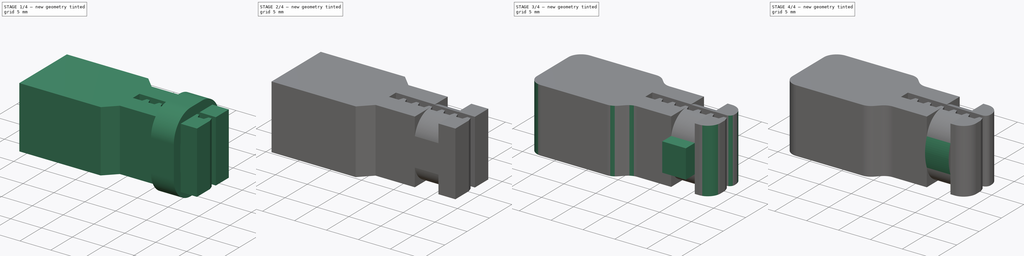
[diagram: build sequence overview — one tinted view per stage of 4, left to right]
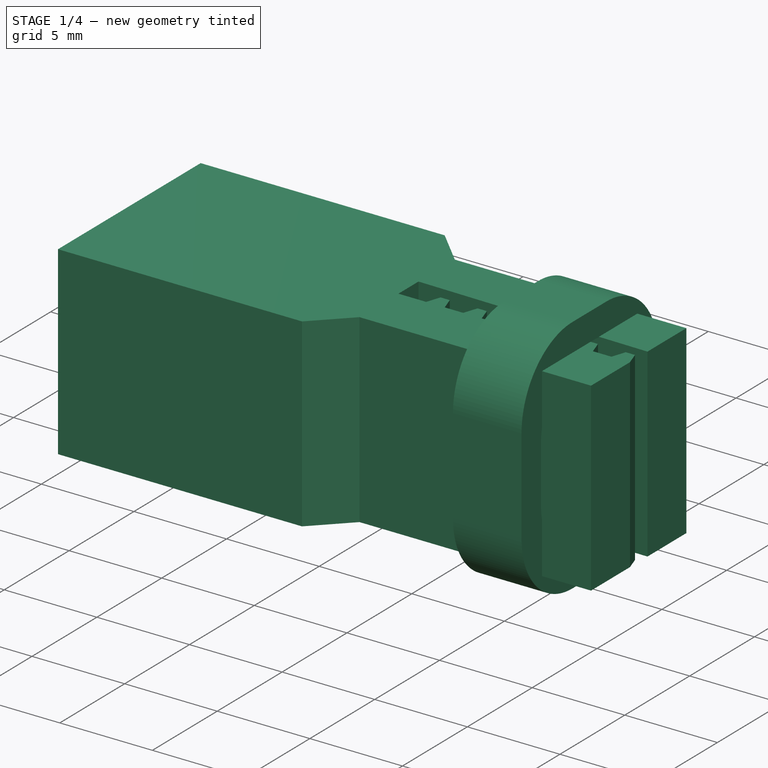
[diagram: stage 1 of 4 — iso view after this stage's code; geometry added in this stage tinted green]
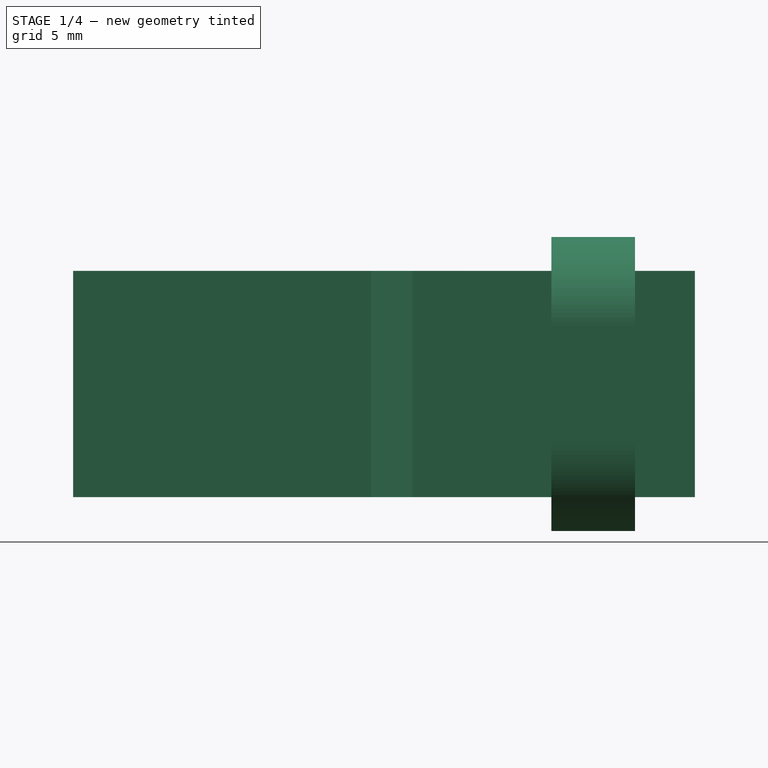
[diagram: stage 1 of 4 — front view after this stage's code; geometry added in this stage tinted green]
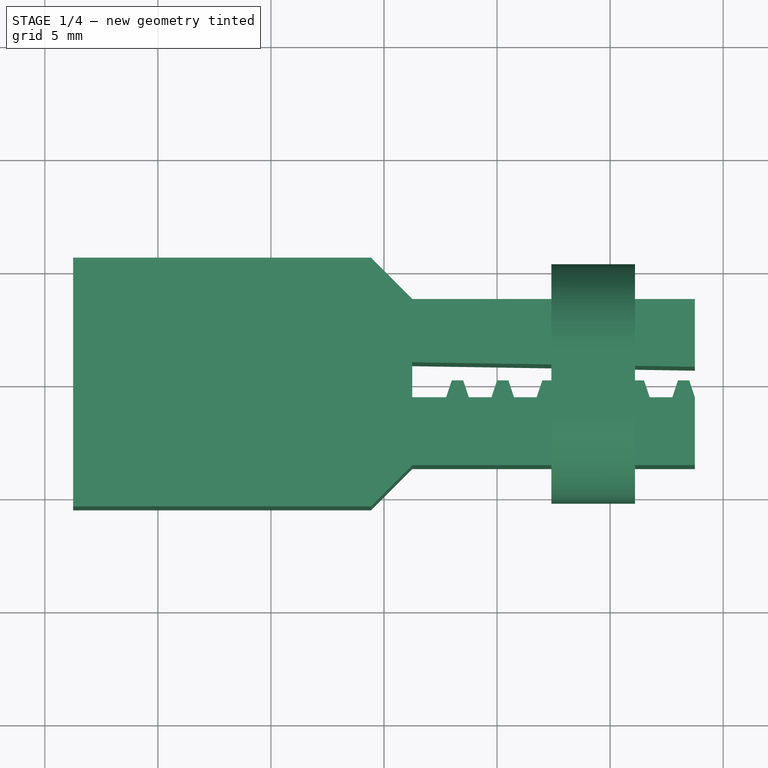
[diagram: stage 1 of 4 — top view after this stage's code; geometry added in this stage tinted green]
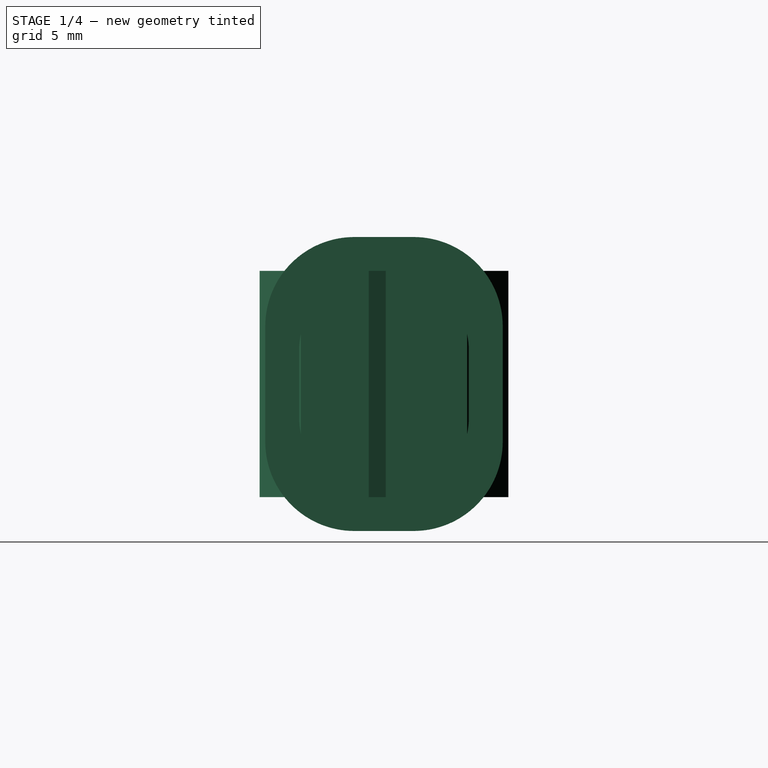
[diagram: stage 1 of 4 — right view after this stage's code; geometry added in this stage tinted green]
FCSTD DOCUMENT  (FreeCAD 0.15R4671 (Git))
Label: Belt Tensioner v2
License: All rights reserved
LicenseURL: http://de.wikipedia.org/wiki/Alle_Rechte_vorbehalten
objects: Sketcher::SketchObject×8, PartDesign::Pad×5, PartDesign::Pocket×3, Part::Cut×2, PartDesign::Fillet×2, PartDesign::Chamfer×1
note: 29 computed .brp shape members not serialized (recipe doc carries the construction recipe); baked Part::Feature solids carry a one-line shape summary decoded from their .brp

FEATURE [Sketcher::SketchObject] Sketch
  sketch-geometry (41):
    g0: LineSegment StartX=2.75 StartY=-0.675 StartZ=0 EndX=3 EndY=0.075 EndZ=0
    g1: LineSegment StartX=3 StartY=0.075 StartZ=0 EndX=3.5 EndY=0.075 EndZ=0
    g2: LineSegment StartX=3.5 StartY=0.075 StartZ=0 EndX=3.75 EndY=-0.675 EndZ=0
    g3: LineSegment StartX=3.75 StartY=-0.675 StartZ=0 EndX=4.75 EndY=-0.675 EndZ=0
    g4: LineSegment StartX=4.75 StartY=-0.675 StartZ=0 EndX=5 EndY=0.075 EndZ=0
    g5: LineSegment StartX=5 StartY=0.075 StartZ=0 EndX=5.5 EndY=0.075 EndZ=0
    g6: LineSegment StartX=5.5 StartY=0.075 StartZ=0 EndX=5.75 EndY=-0.675 EndZ=0
    g7: LineSegment StartX=5.75 StartY=-0.675 StartZ=0 EndX=6.75 EndY=-0.675 EndZ=0
    g8: LineSegment StartX=6.75 StartY=-0.675 StartZ=0 EndX=7 EndY=0.075 EndZ=0
    g9: LineSegment StartX=7 StartY=0.075 StartZ=0 EndX=7.5 EndY=0.075 EndZ=0
    g10: LineSegment StartX=7.5 StartY=0.075 StartZ=0 EndX=7.75 EndY=-0.675 EndZ=0
    g11: LineSegment StartX=7.75 StartY=-0.675 StartZ=0 EndX=8.75 EndY=-0.675 EndZ=0
    g12: LineSegment StartX=8.75 StartY=-0.675 StartZ=0 EndX=9 EndY=0.075 EndZ=0
    g13: LineSegment StartX=9 StartY=0.075 StartZ=0 EndX=9.5 EndY=0.075 EndZ=0
    g14: LineSegment StartX=9.5 StartY=0.075 StartZ=0 EndX=9.75 EndY=-0.675 EndZ=0
    g15: LineSegment [constr] StartX=13.75 StartY=-5.5 StartZ=0 EndX=2.75 EndY=-5.5 EndZ=0
    g16: LineSegment [constr] StartX=2.75 StartY=-5.5 StartZ=0 EndX=2.75 EndY=-0.675 EndZ=0
    g17: LineSegment StartX=9.75 StartY=-0.675 StartZ=0 EndX=10.75 EndY=-0.675 EndZ=0
    g18: LineSegment StartX=10.75 StartY=-0.675 StartZ=0 EndX=11 EndY=0.075 EndZ=0
    g19: LineSegment StartX=11 StartY=0.075 StartZ=0 EndX=11.5 EndY=0.075 EndZ=0
    g20: LineSegment StartX=11.5 StartY=0.075 StartZ=0 EndX=11.75 EndY=-0.675 EndZ=0
    g21: LineSegment StartX=11.75 StartY=-0.675 StartZ=0 EndX=12.75 EndY=-0.675 EndZ=0
    g22: LineSegment StartX=12.75 StartY=-0.675 StartZ=0 EndX=13 EndY=0.075 EndZ=0
    g23: LineSegment StartX=13 StartY=0.075 StartZ=0 EndX=13.5 EndY=0.075 EndZ=0
    g24: LineSegment StartX=13.5 StartY=0.075 StartZ=0 EndX=13.75 EndY=-0.675 EndZ=0
    g25: LineSegment [constr] StartX=13.75 StartY=-0.675 StartZ=0 EndX=13.75 EndY=-5.5 EndZ=0
    g26: LineSegment [constr] StartX=2.75 StartY=-5.5 StartZ=0 EndX=-13.75 EndY=-5.5 EndZ=0
    g27: LineSegment StartX=-13.75 StartY=-5.5 StartZ=0 EndX=-13.75 EndY=5.5 EndZ=0
    g28: LineSegment [constr] StartX=-13.75 StartY=5.5 StartZ=0 EndX=13.75 EndY=5.5 EndZ=0
    g29: LineSegment [constr] StartX=13.75 StartY=5.5 StartZ=0 EndX=13.75 EndY=0.675 EndZ=0
    g30: LineSegment StartX=13.75 StartY=0.675 StartZ=0 EndX=1.25 EndY=0.875 EndZ=0
    g31: LineSegment StartX=1.25 StartY=0.875 StartZ=0 EndX=1.25 EndY=-0.675 EndZ=0
    g32: LineSegment StartX=1.25 StartY=-0.675 StartZ=0 EndX=2.75 EndY=-0.675 EndZ=0
    g33: LineSegment StartX=-13.75 StartY=5.5 StartZ=0 EndX=-0.575 EndY=5.5 EndZ=0
    g34: LineSegment StartX=-0.575 StartY=5.5 StartZ=0 EndX=1.25 EndY=3.675 EndZ=0
    g35: LineSegment StartX=1.25 StartY=3.675 StartZ=0 EndX=13.75 EndY=3.675 EndZ=0
    g36: LineSegment StartX=13.75 StartY=3.675 StartZ=0 EndX=13.75 EndY=0.675 EndZ=0
    g37: LineSegment StartX=-13.75 StartY=-5.5 StartZ=0 EndX=-0.575 EndY=-5.5 EndZ=0
    g38: LineSegment StartX=-0.575 StartY=-5.5 StartZ=0 EndX=1.25 EndY=-3.675 EndZ=0
    g39: LineSegment StartX=1.25 StartY=-3.675 StartZ=0 EndX=13.75 EndY=-3.675 EndZ=0
    g40: LineSegment StartX=13.75 StartY=-3.675 StartZ=0 EndX=13.75 EndY=-0.675 EndZ=0
  constraints (121):
    c: Coincident(g0,g1)
    c: Horizontal(g1)
    c: Coincident(g1,g2)
    c: Coincident(g2,g3)
    c: Horizontal(g3)
    c: Coincident(g3,g4)
    c: Coincident(g4,g5)
    c: Horizontal(g5)
    c: Coincident(g5,g6)
    c: Coincident(g6,g7)
    c: Horizontal(g7)
    c: Coincident(g7,g8)
    c: Coincident(g8,g9)
    c: Horizontal(g9)
    c: Coincident(g9,g10)
    c: Coincident(g10,g11)
    c: Horizontal(g11)
    c: Coincident(g11,g12)
    c: Coincident(g12,g13)
    c: Horizontal(g13)
    c: Coincident(g13,g14)
    c: Horizontal(g15)
    c: Coincident(g15,g16)
    c: Coincident(g16,g0)
    c: Vertical(g16)
    c: Equal(g0,g4)
    c: Equal(g4,g8)
    c: Equal(g8,g12)
    c: Parallel(g12,g8)
    c: Parallel(g8,g4)
    c: Parallel(g4,g0)
    c: Equal(g2,g6)
    c: Equal(g6,g10)
    c: Equal(g10,g14)
    c: Parallel(g2,g6)
    c: Parallel(g6,g10)
    c: Parallel(g10,g14)
    c: Equal(g13,g9)
    c: Equal(g9,g5)
    c: Equal(g5,g1)
    c: Equal(g3,g7)
    c: Equal(g7,g11)
    c: DistanceX(g1) = 0.5
    c: DistanceX(g3) = 1
    c: Equal(g2,g0)
    c: DistanceY(g0,g0) = 0.75
    c: DistanceX(g5,g9) = 2
    c: Coincident(g14,g17)
    c: Horizontal(g17)
    c: Coincident(g17,g18)
    c: Coincident(g18,g19)
    c: Horizontal(g19)
    c: Coincident(g19,g20)
    c: Coincident(g20,g21)
    c: Horizontal(g21)
    c: Coincident(g21,g22)
    c: Coincident(g22,g23)
    c: Horizontal(g23)
    c: Coincident(g23,g24)
    c: Coincident(g24,g25)
    c: Coincident(g25,g15)
    c: Vertical(g25)
    c: Equal(g14,g18)
    c: Equal(g18,g20)
    c: Equal(g20,g22)
    c: Equal(g22,g24)
    c: Equal(g11,g17)
    c: Equal(g17,g21)
    c: Equal(g13,g19)
    c: Equal(g19,g23)
    c: Equal(g16,g25)
    c: Parallel(g12,g18)
    c: Parallel(g18,g22)
    c: Equal(g14,g20)
    c: Parallel(g14,g20)
    c: Parallel(g20,g24)
    c: Coincident(g15,g26)
    c: Horizontal(g26)
    c: Coincident(g26,g27)
    c: Vertical(g27)
    c: Coincident(g27,g28)
    c: Horizontal(g28)
    c: Coincident(g28,g29)
    c: Vertical(g29)
    c: Coincident(g29,g30)
    c: Coincident(g30,g31)
    c: Vertical(g31)
    c: Coincident(g31,g32)
    c: Coincident(g32,g0)
    c: Horizontal(g32)
    c: Equal(g25,g29)
    c: PointOnObject(g29,g25)
    c: DistanceY(g29,g24) = -1.35
    c: DistanceY(g31) = -1.55
    c: DistanceX(g32) = 1.5
    c: DistanceX(g31,g26) = -15
    c: DistanceY(g27) = 11
    c: Symmetric(g26,g27,g-1)
    c: Symmetric(g27,g28,g-2)
    c: Coincident(g27,g33)
    c: Coincident(g33,g34)
    c: Coincident(g34,g35)
    c: PointOnObject(g35,g29)
    c: Horizontal(g35)
    c: Coincident(g35,g36)
    c: Coincident(g29,g36)
    c: PointOnObject(g33,g28)
    c: PointOnObject(g34,g31)
    c: Angle(g35,g34) = 2.35619
    c: Coincident(g26,g37)
    c: Coincident(g37,g38)
    c: Coincident(g38,g39)
    c: PointOnObject(g39,g25)
    c: Horizontal(g39)
    c: Coincident(g39,g40)
    c: Coincident(g24,g40)
    c: PointOnObject(g37,g26)
    c: PointOnObject(g38,g31)
    c: Equal(g38,g34)
    c: Angle(g38,g39) = 2.35619
    c: DistanceY(g31,g38) = -3
FEATURE [PartDesign::Pad] Pad
  Length = 10
  Length2 = 100
  Sketch = -> Sketch
  Type = 0
FEATURE [Sketcher::SketchObject] Sketch002
  Placement = pos=(-7,0,0) rot=(0.57735,0.57735,0.57735;2.0944rad)
  sketch-geometry (10):
    g0: LineSegment [constr] StartX=0 StartY=0.929681 StartZ=0 EndX=3.525 EndY=2.96484 EndZ=0
    g1: LineSegment StartX=3.525 StartY=2.96484 StartZ=0 EndX=3.525 EndY=7.03516 EndZ=0
    g2: LineSegment StartX=3.525 StartY=7.03516 StartZ=0 EndX=0 EndY=9.07032 EndZ=0
    g3: LineSegment StartX=0 StartY=9.07032 StartZ=0 EndX=-3.525 EndY=7.03516 EndZ=0
    g4: LineSegment StartX=-3.525 StartY=7.03516 StartZ=0 EndX=-3.525 EndY=2.96484 EndZ=0
    g5: LineSegment [constr] StartX=-3.525 StartY=2.96484 StartZ=0 EndX=0 EndY=0.929681 EndZ=0
    g6: Circle [constr] CenterX=0 CenterY=5 CenterZ=0 NormalX=0 NormalY=0 NormalZ=1 Radius=4.07032
    g7: LineSegment StartX=-3.525 StartY=2.96484 StartZ=0 EndX=-3.525 EndY=0 EndZ=0
    g8: LineSegment StartX=-3.525 StartY=0 StartZ=0 EndX=3.525 EndY=0 EndZ=0
    g9: LineSegment StartX=3.525 StartY=0 StartZ=0 EndX=3.525 EndY=2.96484 EndZ=0
  constraints (26):
    c: Coincident(g0,g1)
    c: Coincident(g1,g2)
    c: Coincident(g2,g3)
    c: Coincident(g3,g4)
    c: Coincident(g4,g5)
    c: Coincident(g5,g0)
    c: Equal(g0, g1-g5) x5
    c: PointOnObject(g0,g6)
    c: PointOnObject(g1,g6)
    c: PointOnObject(g2,g6)
    c: PointOnObject(g3,g6)
    c: PointOnObject(g4,g6)
    c: PointOnObject(g5,g6)
    c: PointOnObject(g3,g-2)
    c: Vertical(g4)
    c: PointOnObject(g6,g-2)
    c: DistanceY(g-1,g6) = 5
    c: Distance(g0,g4) = 7.05
    c: Coincident(g4,g7)
    c: PointOnObject(g7,g-1)
    c: Vertical(g7)
    c: Coincident(g7,g8)
    c: Coincident(g8,g9)
    c: Coincident(g9,g0)
    c: Vertical(g9)
    c: PointOnObject(g8,g-1)
FEATURE [PartDesign::Pad] Pad001
  Length = 3.5
  Length2 = 100
  Placement = pos=(-7,0,0) rot=(0.57735,0.57735,0.57735;2.0944rad)
  Reversed = true
  Sketch = -> Sketch002
  Type = 0
FEATURE [Sketcher::SketchObject] Sketch003
  Placement = pos=(11.1,0,0) rot=(0.57735,0.57735,0.57735;2.0944rad)
  sketch-geometry (20):
    g0: LineSegment StartX=-1.31066 StartY=11.5 StartZ=0 EndX=1.31066 EndY=11.5 EndZ=0
    g1: LineSegment StartX=5.25 StartY=7.56066 StartZ=0 EndX=5.25 EndY=2.43934 EndZ=0
    g2: LineSegment StartX=1.31066 StartY=-1.5 StartZ=0 EndX=-1.31066 EndY=-1.5 EndZ=0
    g3: LineSegment StartX=-5.25 StartY=2.43934 StartZ=0 EndX=-5.25 EndY=7.56066 EndZ=0
    g4: LineSegment StartX=-0.25 StartY=10 StartZ=0 EndX=0.25 EndY=10 EndZ=0
    g5: LineSegment StartX=3.75 StartY=6.5 StartZ=0 EndX=3.75 EndY=3.5 EndZ=0
    g6: LineSegment StartX=0.25 StartY=0 StartZ=0 EndX=-0.25 EndY=0 EndZ=0
    g7: LineSegment StartX=-3.75 StartY=3.5 StartZ=0 EndX=-3.75 EndY=6.5 EndZ=0
    g8: ArcOfCircle CenterX=-1.31066 CenterY=7.56066 CenterZ=0 NormalX=0 NormalY=0 NormalZ=1 Radius=3.93934 StartAngle=1.5708 EndAngle=3.14159
    g9: ArcOfCircle CenterX=1.31066 CenterY=7.56066 CenterZ=0 NormalX=0 NormalY=0 NormalZ=1 Radius=3.93934 StartAngle=0 EndAngle=1.5708
    g10: ArcOfCircle CenterX=1.31066 CenterY=2.43934 CenterZ=0 NormalX=0 NormalY=0 NormalZ=1 Radius=3.93934 StartAngle=4.71239 EndAngle=6.28319
    g11: ArcOfCircle CenterX=-1.31066 CenterY=2.43934 CenterZ=0 NormalX=0 NormalY=0 NormalZ=1 Radius=3.93934 StartAngle=3.14159 EndAngle=4.71239
    g12: ArcOfCircle CenterX=-0.25 CenterY=3.5 CenterZ=0 NormalX=0 NormalY=0 NormalZ=1 Radius=3.5 StartAngle=3.14159 EndAngle=4.71239
    g13: ArcOfCircle CenterX=0.25 CenterY=3.5 CenterZ=0 NormalX=0 NormalY=0 NormalZ=1 Radius=3.5 StartAngle=4.71239 EndAngle=6.28319
    g14: ArcOfCircle CenterX=0.25 CenterY=6.5 CenterZ=0 NormalX=0 NormalY=0 NormalZ=1 Radius=3.5 StartAngle=0 EndAngle=1.5708
    g15: ArcOfCircle CenterX=-0.25 CenterY=6.5 CenterZ=0 NormalX=0 NormalY=0 NormalZ=1 Radius=3.5 StartAngle=1.5708 EndAngle=3.14159
    g16: LineSegment [constr] StartX=-1.31066 StartY=7.56066 StartZ=0 EndX=-0.25 EndY=6.5 EndZ=0
    g17: LineSegment [constr] StartX=0.25 StartY=3.5 StartZ=0 EndX=1.31066 EndY=2.43934 EndZ=0
    g18: LineSegment [constr] StartX=1.31066 StartY=7.56066 StartZ=0 EndX=0.25 EndY=6.5 EndZ=0
    g19: LineSegment [constr] StartX=-0.25 StartY=3.5 StartZ=0 EndX=-1.31066 EndY=2.43934 EndZ=0
  constraints (46):
    c: Horizontal(g2)
    c: Vertical(g1)
    c: Vertical(g3)
    c: Horizontal(g4)
    c: Vertical(g5)
    c: Vertical(g7)
    c: Tangent(g3,g8) = 1.5708
    c: Tangent(g0,g8) = 1.5708
    c: Tangent(g0,g9) = 1.5708
    c: Tangent(g1,g9) = 1.5708
    c: Tangent(g1,g10) = 1.5708
    c: Tangent(g2,g10) = 1.5708
    c: Tangent(g3,g11) = 1.5708
    c: Tangent(g2,g11) = 1.5708
    c: Tangent(g7,g12) = 1.5708
    c: Tangent(g6,g12) = 1.5708
    c: Tangent(g6,g13) = 1.5708
    c: Tangent(g5,g13) = 1.5708
    c: Tangent(g5,g14) = 1.5708
    c: Tangent(g4,g14) = 1.5708
    c: Tangent(g4,g15) = 1.5708
    c: Tangent(g7,g15) = 1.5708
    c: Equal(g8,g11)
    c: Equal(g11,g10)
    c: Equal(g10,g9)
    c: Symmetric(g0,g0,g-2)
    c: Symmetric(g6,g6,g-2)
    c: PointOnObject(g6,g-1)
    c: Coincident(g16,g8)
    c: Coincident(g16,g15)
    c: Coincident(g17,g13)
    c: Coincident(g17,g10)
    c: Coincident(g18,g9)
    c: Coincident(g18,g14)
    c: Coincident(g19,g12)
    c: Coincident(g19,g11)
    c: Equal(g19,g16)
    c: Equal(g16,g18)
    c: Equal(g18,g17)
    c: Parallel(g17,g16)
    c: Perpendicular(g17,g19)
    c: Distance(g19) = 1.5
    c: DistanceX(g7,g5) = 7.5
    c: DistanceY(g4,g6) = -10
    c: Radius(g15) = 3.5
    c: DistanceY(g6,g2) = -1.5
FEATURE [PartDesign::Pad] Pad002
  Length = 3.7
  Length2 = 100
  Placement = pos=(11.1,0,0) rot=(0.57735,0.57735,0.57735;2.0944rad)
  Reversed = true
  Sketch = -> Sketch003
  Type = 0
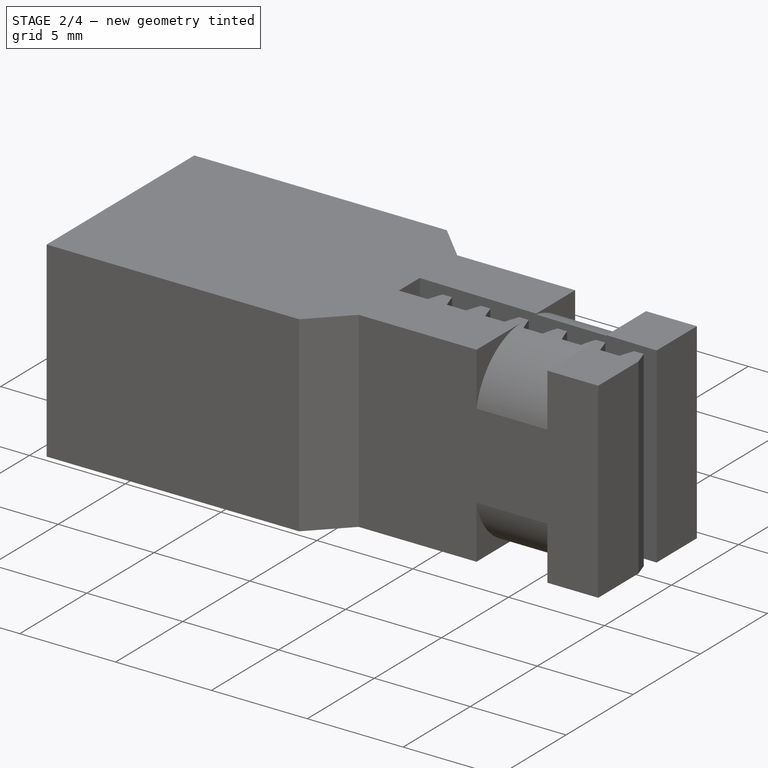
[diagram: stage 2 of 4 — iso view after this stage's code; geometry added in this stage tinted green]
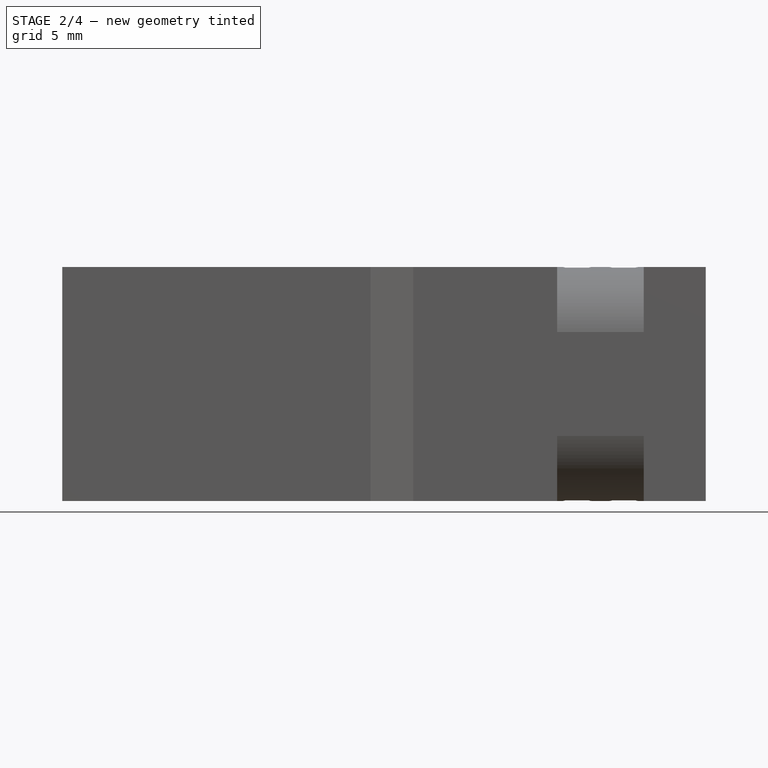
[diagram: stage 2 of 4 — front view after this stage's code; geometry added in this stage tinted green]
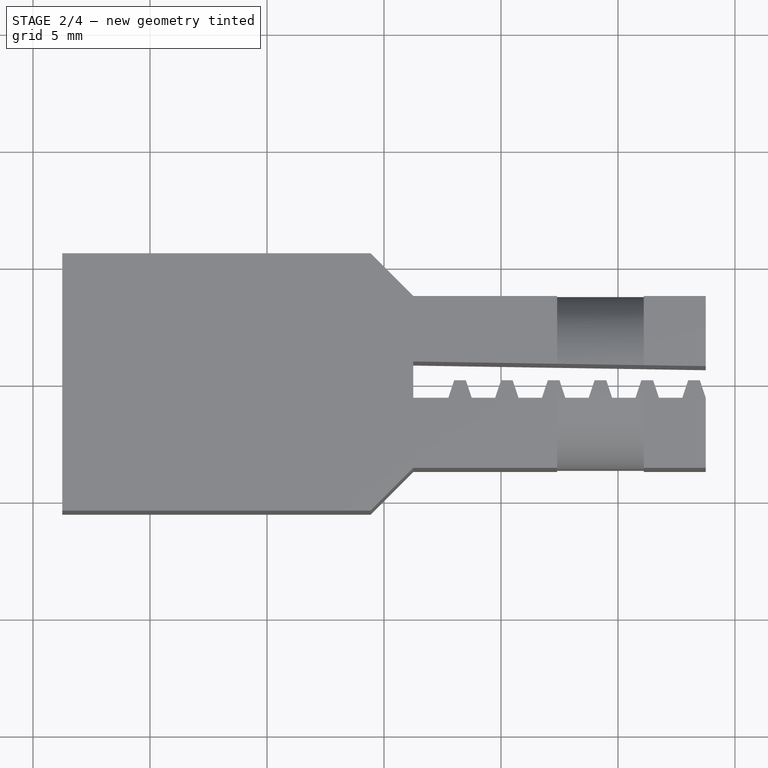
[diagram: stage 2 of 4 — top view after this stage's code; geometry added in this stage tinted green]
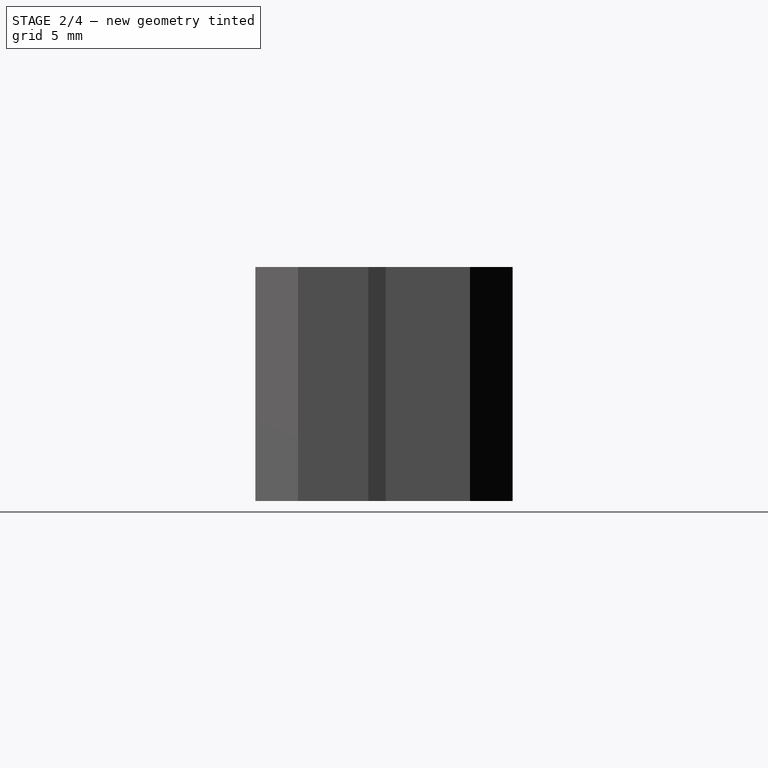
[diagram: stage 2 of 4 — right view after this stage's code; geometry added in this stage tinted green]
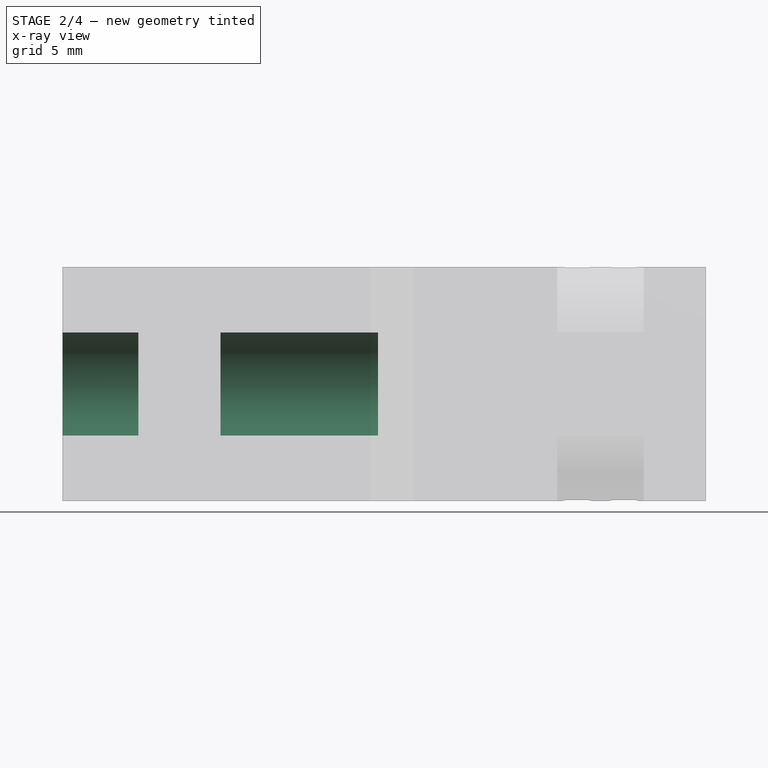
[diagram: stage 2 of 4 — x-ray composite at the front view; earlier geometry ghosted, this stage's added geometry solid]
FEATURE [Sketcher::SketchObject] Sketch001
  ExternalGeometry = -> [Pad]
  Placement = pos=(-13.75,0,0) rot=(0.57735,-0.57735,-0.57735;2.0944rad)
  Support = -> Pad [Face1]
  sketch-geometry (2):
    g0: Circle CenterX=0 CenterY=5 CenterZ=0 NormalX=0 NormalY=0 NormalZ=1 Radius=2.2
    g1: LineSegment [constr] StartX=5.5 StartY=5 StartZ=0 EndX=-5.5 EndY=5 EndZ=0
  constraints (7):
    c: PointOnObject(g0,g-2)
    c: Horizontal(g1)
    c: PointOnObject(g0,g1)
    c: Radius(g0) = 2.2
    c: PointOnObject(g1,g-4)
    c: PointOnObject(g1,g-3)
    c: Symmetric(g-4,g-4,g1)
FEATURE [PartDesign::Pocket] Pocket
  Length = 13.5
  Sketch = -> Sketch001
  Type = 0
FEATURE [Part::Cut] Cut
  Base = -> Pocket
  Tool = -> Pad001
FEATURE [Part::Cut] Cut001
  Base = -> Cut
  Tool = -> Pad002
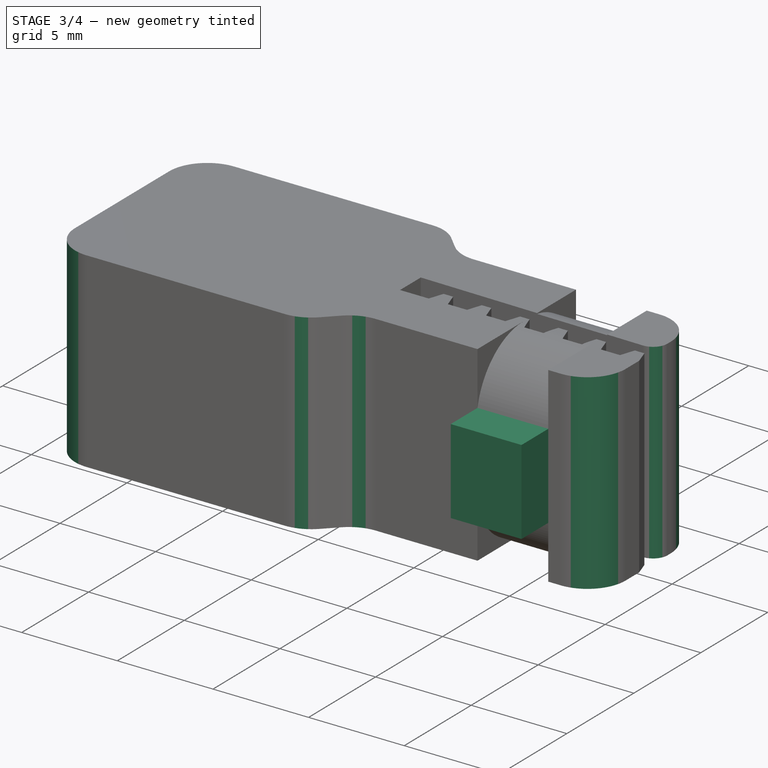
[diagram: stage 3 of 4 — iso view after this stage's code; geometry added in this stage tinted green]
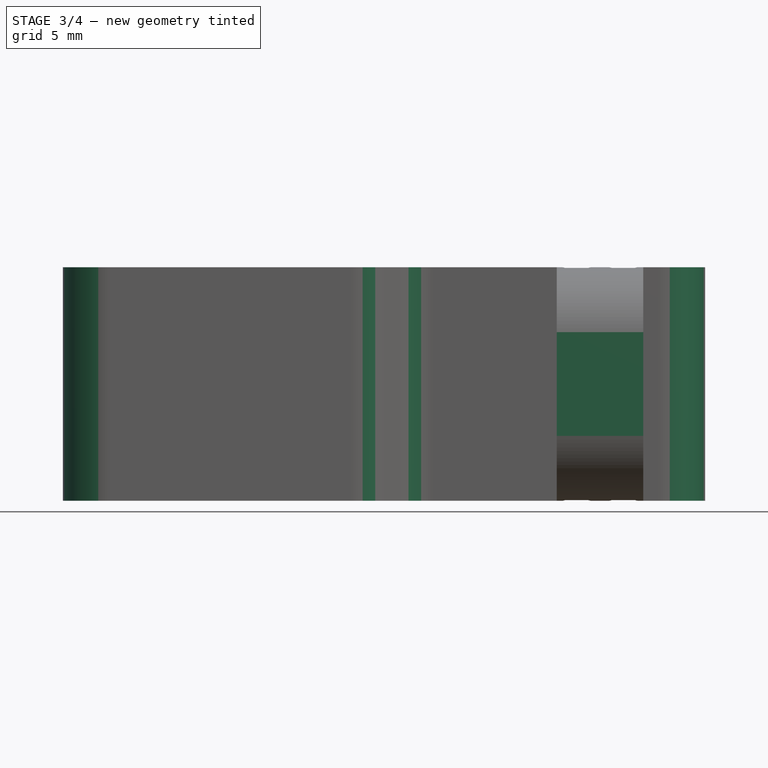
[diagram: stage 3 of 4 — front view after this stage's code; geometry added in this stage tinted green]
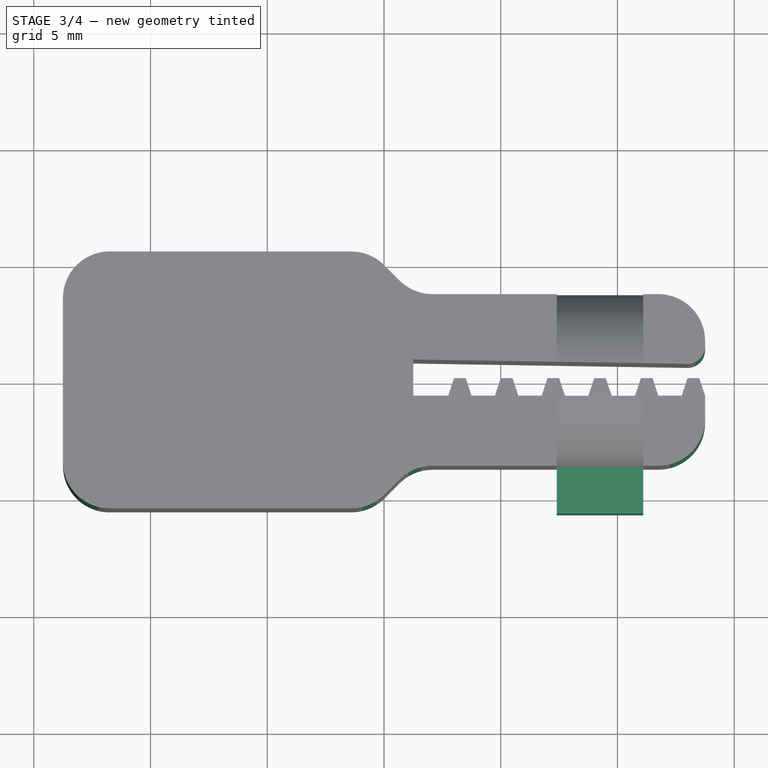
[diagram: stage 3 of 4 — top view after this stage's code; geometry added in this stage tinted green]
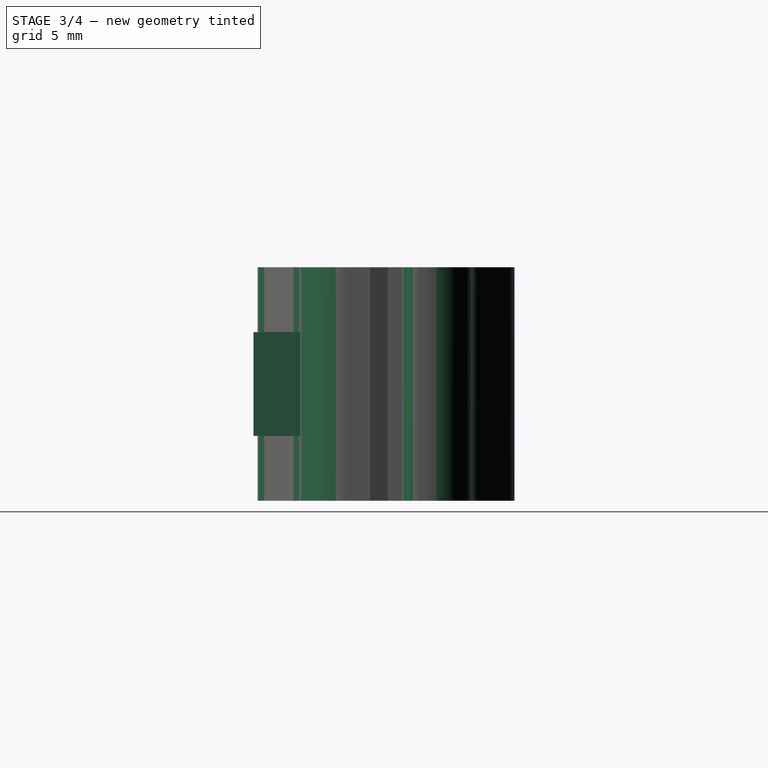
[diagram: stage 3 of 4 — right view after this stage's code; geometry added in this stage tinted green]
FEATURE [PartDesign::Chamfer] Chamfer
  Base = -> Cut001 [Edge31,Edge33,Edge32,Edge30]
  Size = 0.5
FEATURE [PartDesign::Fillet] Fillet
  Base = -> Chamfer [Edge48,Edge42,Edge40,Edge38,Edge99,Edge105,Edge106,Edge36]
  Radius = 2
FEATURE [PartDesign::Fillet] Fillet001
  Base = -> Fillet [Edge93]
  Radius = 0.75
FEATURE [Sketcher::SketchObject] Sketch004
  ExternalGeometry = -> [Fillet001]
  Placement = pos=(0,-3.675,0) rot=(1,0,0;1.5708rad)
  Support = -> Fillet001 [Face28]
  sketch-geometry (4):
    g0: LineSegment StartX=7.4 StartY=7.22068 StartZ=0 EndX=11.1 EndY=7.22068 EndZ=0
    g1: LineSegment StartX=11.1 StartY=7.22068 StartZ=0 EndX=11.1 EndY=2.77932 EndZ=0
    g2: LineSegment StartX=11.1 StartY=2.77932 StartZ=0 EndX=7.4 EndY=2.77932 EndZ=0
    g3: LineSegment StartX=7.4 StartY=2.77932 StartZ=0 EndX=7.4 EndY=7.22068 EndZ=0
  constraints (10):
    c: Coincident(g0,g1)
    c: Coincident(g1,g2)
    c: Coincident(g2,g3)
    c: Coincident(g3,g0)
    c: Horizontal(g0)
    c: Horizontal(g2)
    c: Vertical(g1)
    c: Vertical(g3)
    c: Coincident(g0,g-3)
    c: Coincident(g1,g-4)
FEATURE [PartDesign::Pad] Pad003
  Length = 2
  Length2 = 100
  Sketch = -> Sketch004
  Type = 0
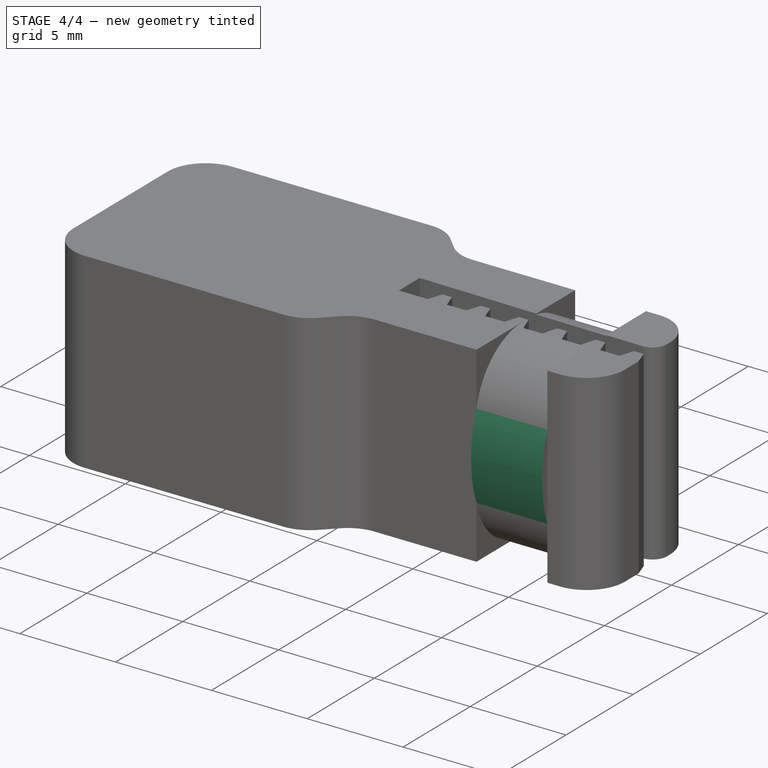
[diagram: stage 4 of 4 — iso view after this stage's code; geometry added in this stage tinted green]
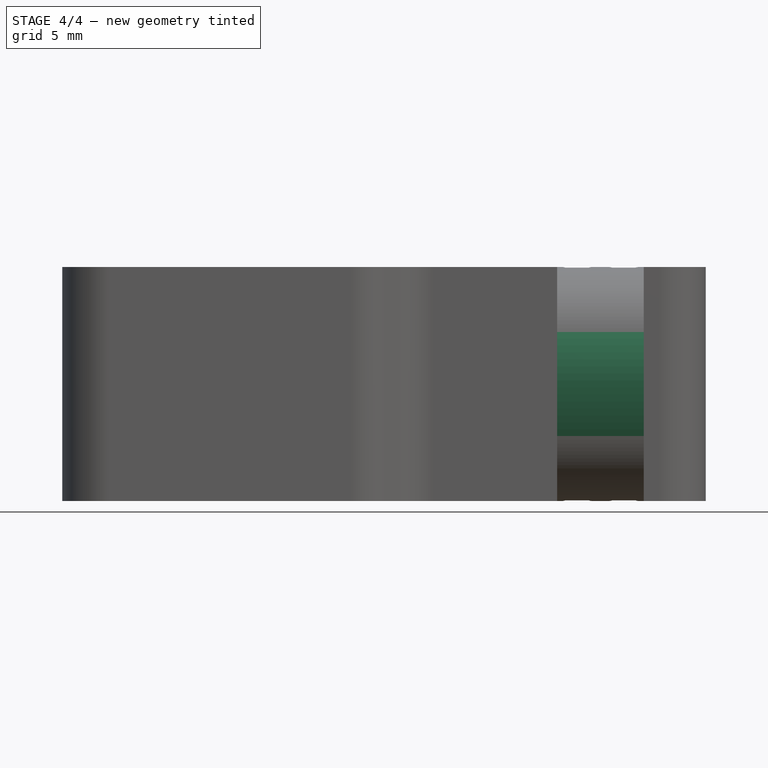
[diagram: stage 4 of 4 — front view after this stage's code; geometry added in this stage tinted green]
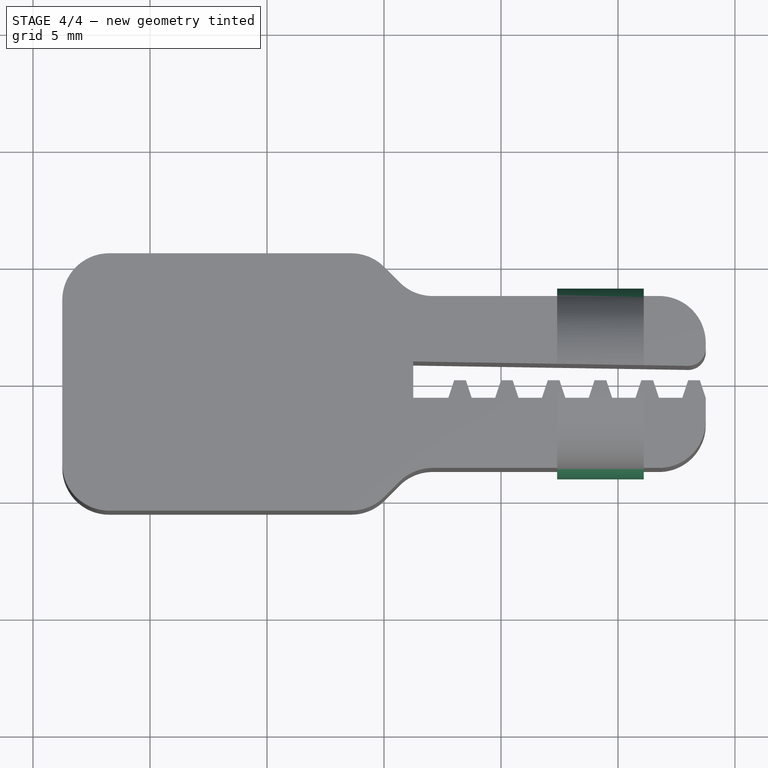
[diagram: stage 4 of 4 — top view after this stage's code; geometry added in this stage tinted green]
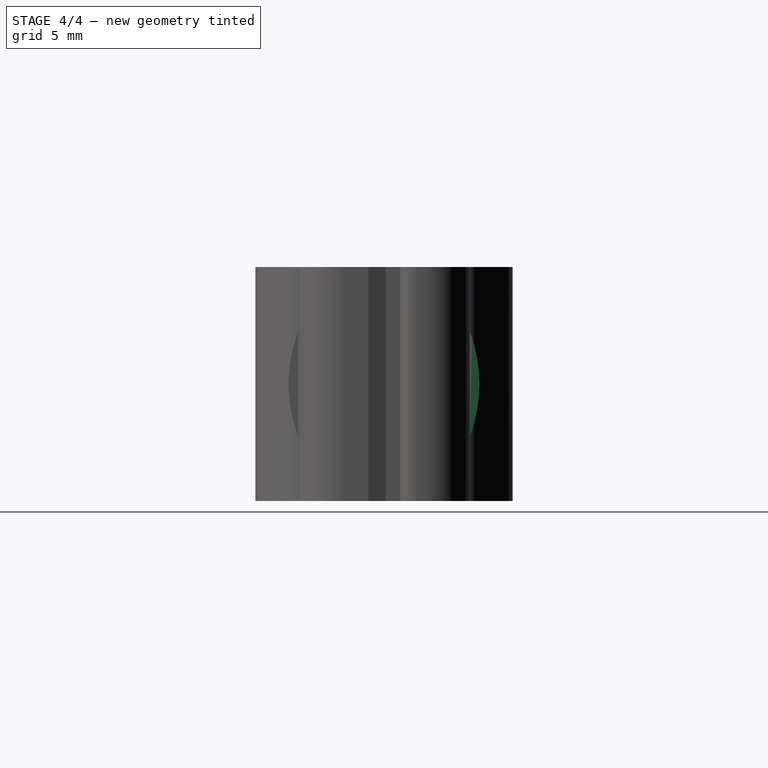
[diagram: stage 4 of 4 — right view after this stage's code; geometry added in this stage tinted green]
FEATURE [Sketcher::SketchObject] Sketch005
  ExternalGeometry = -> [Pad003]
  Placement = pos=(11.1,0,0) rot=(0.57735,0.57735,0.57735;2.0944rad)
  Support = -> Pad003 [Face3]
  sketch-geometry (4):
    g0: ArcOfCircle CenterX=2.27404 CenterY=5 CenterZ=0 NormalX=0 NormalY=0 NormalZ=1 Radius=6.35 StartAngle=2.78433 EndAngle=3.49886
    g1: LineSegment StartX=-3.675 StartY=2.77932 StartZ=0 EndX=-5.675 EndY=2.77932 EndZ=0
    g2: LineSegment StartX=-5.675 StartY=2.77932 StartZ=0 EndX=-5.675 EndY=7.22068 EndZ=0
    g3: LineSegment StartX=-5.675 StartY=7.22068 StartZ=0 EndX=-3.675 EndY=7.22068 EndZ=0
  constraints (9):
    c: Coincident(g0,g-3)
    c: Coincident(g0,g-4)
    c: Coincident(g1,g-4)
    c: Coincident(g1,g2)
    c: Coincident(g2,g-3)
    c: Coincident(g2,g3)
    c: Coincident(g3,g0)
    c: Coincident(g0,g1)
    c: Radius(g0) = 6.35
FEATURE [PartDesign::Pocket] Pocket001
  Length = 5
  Sketch = -> Sketch005
  Type = 2
FEATURE [Sketcher::SketchObject] Sketch006
  ExternalGeometry = -> [Pocket001]
  Placement = pos=(0,3.675,0) rot=(0,0.707107,0.707107;3.14159rad)
  Support = -> Pocket001 [Face49]
  sketch-geometry (4):
    g0: LineSegment StartX=-11.1 StartY=7.22068 StartZ=0 EndX=-7.4 EndY=7.22068 EndZ=0
    g1: LineSegment StartX=-7.4 StartY=7.22068 StartZ=0 EndX=-7.4 EndY=2.77932 EndZ=0
    g2: LineSegment StartX=-7.4 StartY=2.77932 StartZ=0 EndX=-11.1 EndY=2.77932 EndZ=0
    g3: LineSegment StartX=-11.1 StartY=2.77932 StartZ=0 EndX=-11.1 EndY=7.22068 EndZ=0
  constraints (10):
    c: Coincident(g0,g1)
    c: Coincident(g1,g2)
    c: Coincident(g2,g3)
    c: Coincident(g3,g0)
    c: Horizontal(g0)
    c: Horizontal(g2)
    c: Vertical(g1)
    c: Vertical(g3)
    c: Coincident(g0,g-3)
    c: Coincident(g1,g-4)
FEATURE [PartDesign::Pad] Pad004
  Length = 2
  Length2 = 100
  Sketch = -> Sketch006
  Type = 0
FEATURE [Sketcher::SketchObject] Sketch007
  ExternalGeometry = -> [Pad004]
  Placement = pos=(11.1,0,0) rot=(0.57735,0.57735,0.57735;2.0944rad)
  Support = -> Pad004 [Face5]
  sketch-geometry (4):
    g0: ArcOfCircle CenterX=-2.27404 CenterY=5 CenterZ=0 NormalX=0 NormalY=0 NormalZ=1 Radius=6.35 StartAngle=5.92592 EndAngle=6.64045
    g1: LineSegment StartX=3.675 StartY=7.22068 StartZ=0 EndX=5.675 EndY=7.22068 EndZ=0
    g2: LineSegment StartX=5.675 StartY=7.22068 StartZ=0 EndX=5.675 EndY=2.77932 EndZ=0
    g3: LineSegment StartX=5.675 StartY=2.77932 StartZ=0 EndX=3.675 EndY=2.77932 EndZ=0
  constraints (9):
    c: Coincident(g0,g-4)
    c: Coincident(g0,g-3)
    c: Radius(g0) = 6.35
    c: Coincident(g1,g-4)
    c: Coincident(g1,g2)
    c: Coincident(g2,g-3)
    c: Coincident(g2,g3)
    c: Coincident(g3,g0)
    c: Coincident(g0,g1)
FEATURE [PartDesign::Pocket] Pocket002
  Length = 5
  Sketch = -> Sketch007
  Type = 2
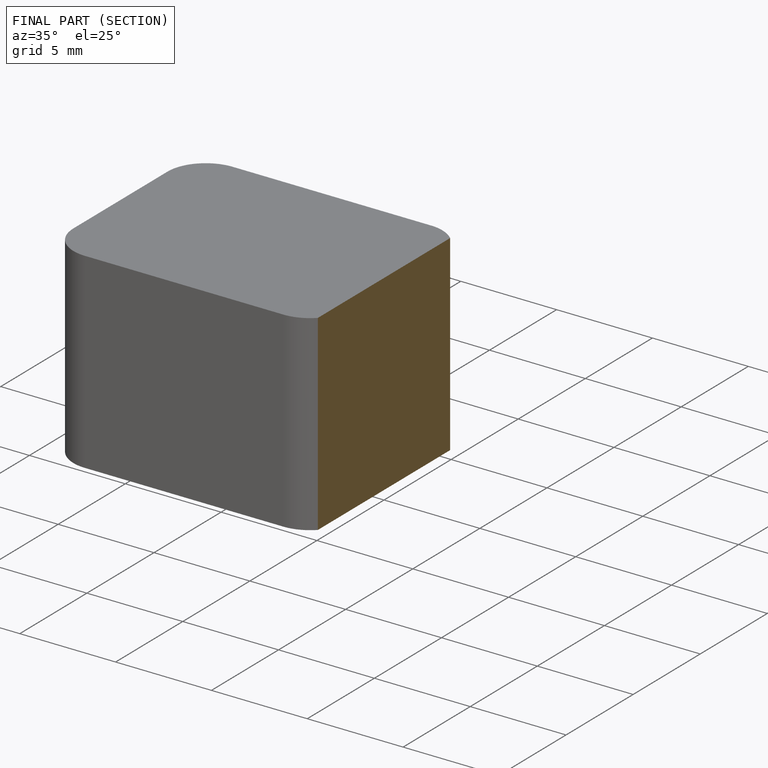
[diagram: finished part — half-section view (interior)]
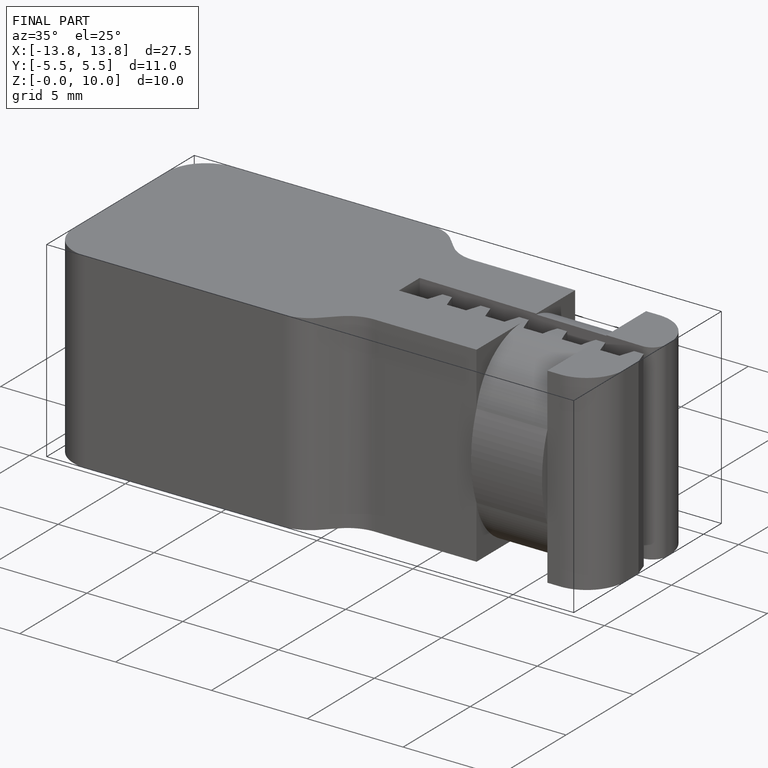
[diagram: finished part — iso view with bounding-box wireframe]
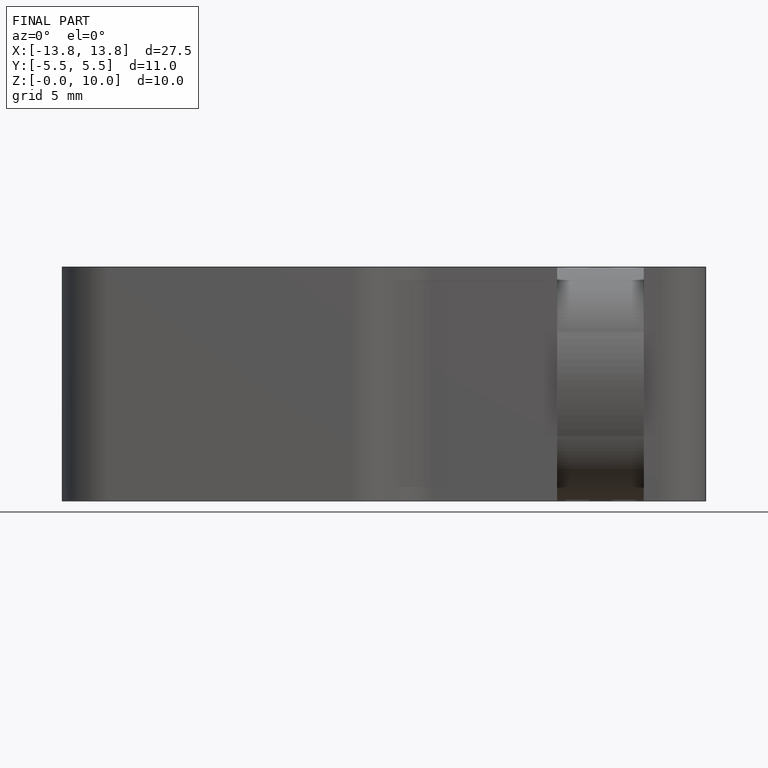
[diagram: finished part — front view with bounding-box wireframe]
